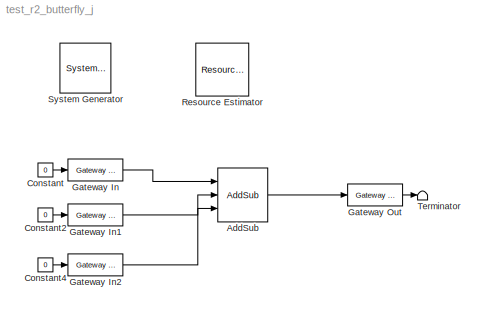
MODEL test_r2_butterfly_j
KIND model
BLOCK [Reference]  System Generator  REF=xbsIndex_r3/ System Generator
  AttributesFormatString = System\\nGenerator
  Ports = []
  ShowPortLabels = on
  SourceBlock = xbsIndex_r3/ System Generator
  SourceType = Xilinx System Generator
  Tag = genX
  UserData = DataTag0
  UserDataPersistent = on
  core_generation = According to Block Masks
  dbl_ovrd = According to Block Masks
  deprecated_control = off
  directory = ./netlist
  eval_field = 0
  incr_netlist = off
  package = bg575
  part = xc2v1000
  run_coregen = off
  simulink_period = 1
  speed = -4
  synthesis_tool = XST
  sysclk_period = 100
  testbench = off
  trim_vbits = Everywhere in SubSystem
  xilinxfamily = Virtex2
BLOCK [Reference] AddSub  REF=xbsIndex_r3/AddSub
  Ports = [3, 1]
  SourceBlock = xbsIndex_r3/AddSub
  SourceType = Xilinx Adder/Subtractor
  arith_type = Unsigned
  bin_pt = 2
  dbl_ovrd = off
  en = off
  explicit_period = off
  gen_core = off
  latency = 1
  mode = Addition or Subtraction
  n_bits = 8
  overflow = Wrap
  period = 1
  pipeline = on
  precision = Full
  quantization = Truncate
  show_param = on
  use_carryin = off
  use_carryout = off
  use_core = on
  use_rpm = on
  xl_area = [5 9 0 9 0 0 0]
  xl_use_area = off
BLOCK [Constant] Constant
  Value = 0
BLOCK [Constant] Constant2
  Value = 0
BLOCK [Constant] Constant4
  Value = 0
BLOCK [Reference] Gateway In  REF=xbsIndex_r3/Gateway In
  LOCs = {}
  Ports = [1, 1]
  SourceBlock = xbsIndex_r3/Gateway In
  SourceType = Xilinx Gateway In
  arith_type = Signed  (2's comp)
  bin_pt = 7
  dbl_ovrd = off
  locs_specified = off
  n_bits = 8
  needs_fixed_name = off
  overflow = Wrap
  period = 1
  quantization = Truncate
  show_param = off
  timing_constraint = None
  xl_area = [0 0 0 0 8 0 0]
  xl_use_area = off
BLOCK [Reference] Gateway In1  REF=xbsIndex_r3/Gateway In
  LOCs = {}
  Ports = [1, 1]
  SourceBlock = xbsIndex_r3/Gateway In
  SourceType = Xilinx Gateway In
  arith_type = Signed  (2's comp)
  bin_pt = 7
  dbl_ovrd = off
  locs_specified = off
  n_bits = 8
  needs_fixed_name = off
  overflow = Wrap
  period = 1
  quantization = Truncate
  show_param = off
  timing_constraint = None
  xl_area = [0 0 0 0 8 0 0]
  xl_use_area = off
BLOCK [Reference] Gateway In2  REF=xbsIndex_r3/Gateway In
  LOCs = {}
  Ports = [1, 1]
  SourceBlock = xbsIndex_r3/Gateway In
  SourceType = Xilinx Gateway In
  arith_type = Boolean
  bin_pt = 7
  dbl_ovrd = off
  locs_specified = off
  n_bits = 8
  needs_fixed_name = off
  overflow = Wrap
  period = 1
  quantization = Truncate
  show_param = off
  timing_constraint = None
  xl_area = [0 0 0 0 1 0 0]
  xl_use_area = off
BLOCK [Reference] Gateway Out  REF=xbsIndex_r3/Gateway Out
  LOCs = {}
  Ports = [1, 1]
  SourceBlock = xbsIndex_r3/Gateway Out
  SourceType = Xilinx Gateway Out
  arith_type = Boolean
  bin_pt = 6
  hdl_port = on
  locs_specified = off
  nbits = 8
  needs_fixed_name = off
  output_type = Double
  overflow = Wrap
  quantization = Truncate
  show_param = off
  timing_constraint = None
  xl_area = [0 0 0 0 9 0 0]
  xl_use_area = off
BLOCK [Reference] Resource Estimator  REF=xbsIndex_r3/Resource Estimator
  AttributesFormatString = Resource Estimator\\n%<xl_estimator_area>\\n[SL FF BR LUT IO MUL TBUF]
  Ports = []
  ShowPortLabels = on
  SourceBlock = xbsIndex_r3/Resource Estimator
  SourceType = Xilinx Resource Estimator Block
  Tag = resEstTag
  mrp_directory = ./netlist
  simulink_period = 1
  xl_estimator_area = [5 9 0 9 26 0 0]
  xl_use_estimator_area = off
BLOCK [Terminator] Terminator
LINE AddSub:1 -> Gateway Out:1
LINE Constant2:1 -> Gateway In1:1
LINE Constant4:1 -> Gateway In2:1
LINE Constant:1 -> Gateway In:1
LINE Gateway In1:1 -> AddSub:2
LINE Gateway In2:1 -> AddSub:3
LINE Gateway In:1 -> AddSub:1
LINE Gateway Out:1 -> Terminator:1
